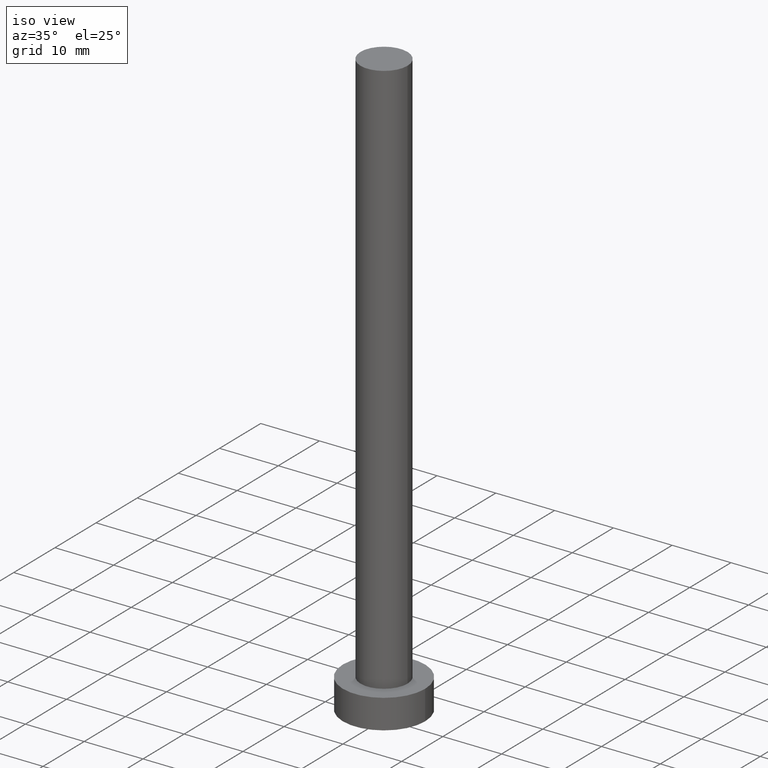
[diagram: clean part render]
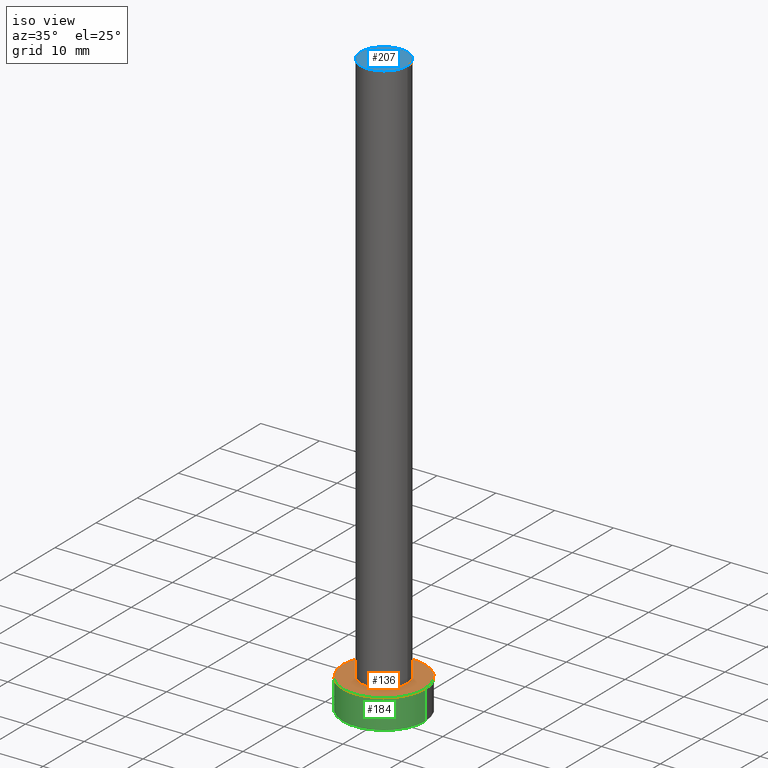
[diagram: same view with three faces highlighted in distinct colors, each labeled with its STEP entity id]
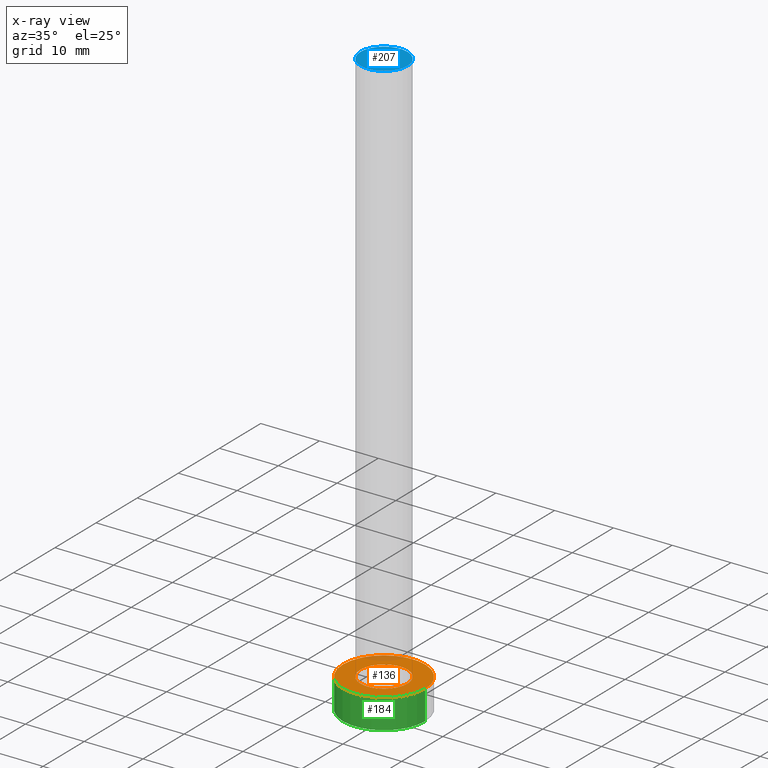
[diagram: x-ray of the same camera — body ghosted, the three highlighted faces saturated]
A machine part, iso view with three faces highlighted in distinct colors.
The next image is the same camera in x-ray (body ghosted, the three faces saturated) — at least one of them is partly hidden behind the body in this view.
Their STEP definitions:

[orange] entity #136 — the highlighted planar face has unit normal (0, 0, 1).
#12 = DIRECTION ( 'NONE',  ( 0.000000000000000000, 0.000000000000000000, 1.000000000000000000 ) ) ;
#27 = CARTESIAN_POINT ( 'NONE',  ( 0.000000000000000000, 0.000000000000000000, 5.000000000000000000 ) ) ;
#30 = CARTESIAN_POINT ( 'NONE',  ( 0.000000000000000000, 0.000000000000000000, 5.000000000000000000 ) ) ;
#33 = DIRECTION ( 'NONE',  ( 1.000000000000000000, 0.000000000000000000, -0.000000000000000000 ) ) ;
#34 = DIRECTION ( 'NONE',  ( 0.000000000000000000, 0.000000000000000000, 1.000000000000000000 ) ) ;
#35 = EDGE_LOOP ( 'NONE', ( #97, #42 ) ) ;
#42 = ORIENTED_EDGE ( 'NONE', *, *, #236, .F. ) ;
#48 = EDGE_CURVE ( 'NONE', #181, #60, #70, .T. ) ;
#50 = AXIS2_PLACEMENT_3D ( 'NONE', #234, #143, #198 ) ;
#55 = CARTESIAN_POINT ( 'NONE',  ( 0.000000000000000000, 0.000000000000000000, 5.000000000000000000 ) ) ;
#56 = PLANE ( 'NONE',  #202 ) ;
#60 = VERTEX_POINT ( 'NONE', #77 ) ;
#65 = VERTEX_POINT ( 'NONE', #73 ) ;
#70 = CIRCLE ( 'NONE', #86, 7.000000000000000000 ) ;
#73 = CARTESIAN_POINT ( 'NONE',  ( -4.000000000000000000, 0.000000000000000000, 5.000000000000000000 ) ) ;
#74 = FACE_OUTER_BOUND ( 'NONE', #99, .T. ) ;
#76 = CARTESIAN_POINT ( 'NONE',  ( -7.000000000000000000, 0.000000000000000000, 5.000000000000000000 ) ) ;
#77 = CARTESIAN_POINT ( 'NONE',  ( 7.000000000000000000, 8.572527594031473190E-16, 5.000000000000000000 ) ) ;
#86 = AXIS2_PLACEMENT_3D ( 'NONE', #30, #12, #96 ) ;
#90 = CARTESIAN_POINT ( 'NONE',  ( 0.000000000000000000, 0.000000000000000000, 5.000000000000000000 ) ) ;
#96 = DIRECTION ( 'NONE',  ( 1.000000000000000000, 0.000000000000000000, 0.000000000000000000 ) ) ;
#97 = ORIENTED_EDGE ( 'NONE', *, *, #126, .F. ) ;
#99 = EDGE_LOOP ( 'NONE', ( #119, #224 ) ) ;
#104 = CIRCLE ( 'NONE', #50, 4.000000000000000000 ) ;
#119 = ORIENTED_EDGE ( 'NONE', *, *, #48, .T. ) ;
#125 = CARTESIAN_POINT ( 'NONE',  ( 4.000000000000000000, 4.898587196589412829E-16, 5.000000000000000000 ) ) ;
#126 = EDGE_CURVE ( 'NONE', #65, #251, #151, .T. ) ;
#127 = AXIS2_PLACEMENT_3D ( 'NONE', #27, #139, #210 ) ;
#136 = ADVANCED_FACE ( 'NONE', ( #216, #74 ), #56, .T. ) ;
#139 = DIRECTION ( 'NONE',  ( 0.000000000000000000, 0.000000000000000000, 1.000000000000000000 ) ) ;
#143 = DIRECTION ( 'NONE',  ( 0.000000000000000000, 0.000000000000000000, 1.000000000000000000 ) ) ;
#147 = DIRECTION ( 'NONE',  ( 1.000000000000000000, 0.000000000000000000, 0.000000000000000000 ) ) ;
#151 = CIRCLE ( 'NONE', #205, 4.000000000000000000 ) ;
#181 = VERTEX_POINT ( 'NONE', #76 ) ;
#198 = DIRECTION ( 'NONE',  ( 1.000000000000000000, 0.000000000000000000, 0.000000000000000000 ) ) ;
#202 = AXIS2_PLACEMENT_3D ( 'NONE', #55, #34, #33 ) ;
#205 = AXIS2_PLACEMENT_3D ( 'NONE', #90, #238, #147 ) ;
#210 = DIRECTION ( 'NONE',  ( 1.000000000000000000, 0.000000000000000000, 0.000000000000000000 ) ) ;
#216 = FACE_BOUND ( 'NONE', #35, .T. ) ;
#224 = ORIENTED_EDGE ( 'NONE', *, *, #240, .T. ) ;
#234 = CARTESIAN_POINT ( 'NONE',  ( 0.000000000000000000, 0.000000000000000000, 5.000000000000000000 ) ) ;
#236 = EDGE_CURVE ( 'NONE', #251, #65, #104, .T. ) ;
#238 = DIRECTION ( 'NONE',  ( 0.000000000000000000, 0.000000000000000000, 1.000000000000000000 ) ) ;
#240 = EDGE_CURVE ( 'NONE', #60, #181, #248, .T. ) ;
#248 = CIRCLE ( 'NONE', #127, 7.000000000000000000 ) ;
#251 = VERTEX_POINT ( 'NONE', #125 ) ;

[blue] entity #207 — the highlighted planar face has unit normal (0, 0, 1).
#18 = ORIENTED_EDGE ( 'NONE', *, *, #37, .T. ) ;
#24 = CIRCLE ( 'NONE', #140, 4.000000000000000000 ) ;
#29 = DIRECTION ( 'NONE',  ( 0.000000000000000000, 0.000000000000000000, 1.000000000000000000 ) ) ;
#37 = EDGE_CURVE ( 'NONE', #209, #101, #213, .T. ) ;
#40 = DIRECTION ( 'NONE',  ( 1.000000000000000000, 0.000000000000000000, -0.000000000000000000 ) ) ;
#52 = EDGE_CURVE ( 'NONE', #101, #209, #24, .T. ) ;
#59 = CARTESIAN_POINT ( 'NONE',  ( 0.000000000000000000, 0.000000000000000000, 100.0000000000000000 ) ) ;
#66 = DIRECTION ( 'NONE',  ( 0.000000000000000000, 0.000000000000000000, 1.000000000000000000 ) ) ;
#83 = FACE_OUTER_BOUND ( 'NONE', #100, .T. ) ;
#95 = DIRECTION ( 'NONE',  ( 1.000000000000000000, 0.000000000000000000, 0.000000000000000000 ) ) ;
#100 = EDGE_LOOP ( 'NONE', ( #157, #18 ) ) ;
#101 = VERTEX_POINT ( 'NONE', #217 ) ;
#113 = CARTESIAN_POINT ( 'NONE',  ( 0.000000000000000000, 0.000000000000000000, 100.0000000000000000 ) ) ;
#129 = AXIS2_PLACEMENT_3D ( 'NONE', #59, #66, #40 ) ;
#140 = AXIS2_PLACEMENT_3D ( 'NONE', #200, #29, #95 ) ;
#157 = ORIENTED_EDGE ( 'NONE', *, *, #52, .T. ) ;
#173 = DIRECTION ( 'NONE',  ( 0.000000000000000000, 0.000000000000000000, 1.000000000000000000 ) ) ;
#192 = DIRECTION ( 'NONE',  ( 1.000000000000000000, 0.000000000000000000, 0.000000000000000000 ) ) ;
#200 = CARTESIAN_POINT ( 'NONE',  ( 0.000000000000000000, 0.000000000000000000, 100.0000000000000000 ) ) ;
#207 = ADVANCED_FACE ( 'NONE', ( #83 ), #223, .T. ) ;
#209 = VERTEX_POINT ( 'NONE', #245 ) ;
#213 = CIRCLE ( 'NONE', #253, 4.000000000000000000 ) ;
#217 = CARTESIAN_POINT ( 'NONE',  ( -4.000000000000000000, 0.000000000000000000, 100.0000000000000000 ) ) ;
#223 = PLANE ( 'NONE',  #129 ) ;
#245 = CARTESIAN_POINT ( 'NONE',  ( 4.000000000000000000, 4.898587196589412829E-16, 100.0000000000000000 ) ) ;
#253 = AXIS2_PLACEMENT_3D ( 'NONE', #113, #173, #192 ) ;

[green] entity #184 — the highlighted cylindrical surface (partial cylindrical patch) has radius 7 mm, axis along (-0, -0, -1).
#2 = VECTOR ( 'NONE', #110, 1000.000000000000000 ) ;
#6 = CARTESIAN_POINT ( 'NONE',  ( 7.000000000000000000, 8.572527594031473190E-16, 0.000000000000000000 ) ) ;
#8 = LINE ( 'NONE', #171, #2 ) ;
#11 = CARTESIAN_POINT ( 'NONE',  ( 0.000000000000000000, 0.000000000000000000, 5.000000000000000000 ) ) ;
#12 = DIRECTION ( 'NONE',  ( 0.000000000000000000, 0.000000000000000000, 1.000000000000000000 ) ) ;
#23 = ORIENTED_EDGE ( 'NONE', *, *, #219, .T. ) ;
#30 = CARTESIAN_POINT ( 'NONE',  ( 0.000000000000000000, 0.000000000000000000, 5.000000000000000000 ) ) ;
#39 = EDGE_LOOP ( 'NONE', ( #226, #63, #178, #23 ) ) ;
#46 = CARTESIAN_POINT ( 'NONE',  ( -7.000000000000000000, 0.000000000000000000, 5.000000000000000000 ) ) ;
#48 = EDGE_CURVE ( 'NONE', #181, #60, #70, .T. ) ;
#60 = VERTEX_POINT ( 'NONE', #77 ) ;
#63 = ORIENTED_EDGE ( 'NONE', *, *, #48, .F. ) ;
#70 = CIRCLE ( 'NONE', #86, 7.000000000000000000 ) ;
#72 = DIRECTION ( 'NONE',  ( 1.000000000000000000, 0.000000000000000000, 0.000000000000000000 ) ) ;
#76 = CARTESIAN_POINT ( 'NONE',  ( -7.000000000000000000, 0.000000000000000000, 5.000000000000000000 ) ) ;
#77 = CARTESIAN_POINT ( 'NONE',  ( 7.000000000000000000, 8.572527594031473190E-16, 5.000000000000000000 ) ) ;
#78 = EDGE_CURVE ( 'NONE', #60, #115, #8, .T. ) ;
#79 = VECTOR ( 'NONE', #107, 1000.000000000000000 ) ;
#86 = AXIS2_PLACEMENT_3D ( 'NONE', #30, #12, #96 ) ;
#96 = DIRECTION ( 'NONE',  ( 1.000000000000000000, 0.000000000000000000, 0.000000000000000000 ) ) ;
#107 = DIRECTION ( 'NONE',  ( -0.000000000000000000, -0.000000000000000000, -1.000000000000000000 ) ) ;
#108 = DIRECTION ( 'NONE',  ( 0.000000000000000000, 0.000000000000000000, 1.000000000000000000 ) ) ;
#110 = DIRECTION ( 'NONE',  ( -0.000000000000000000, -0.000000000000000000, -1.000000000000000000 ) ) ;
#115 = VERTEX_POINT ( 'NONE', #6 ) ;
#120 = CARTESIAN_POINT ( 'NONE',  ( 0.000000000000000000, 0.000000000000000000, 0.000000000000000000 ) ) ;
#152 = AXIS2_PLACEMENT_3D ( 'NONE', #11, #174, #242 ) ;
#153 = CYLINDRICAL_SURFACE ( 'NONE', #152, 7.000000000000000000 ) ;
#167 = CIRCLE ( 'NONE', #186, 7.000000000000000000 ) ;
#171 = CARTESIAN_POINT ( 'NONE',  ( 7.000000000000000000, 8.572527594031473190E-16, 5.000000000000000000 ) ) ;
#174 = DIRECTION ( 'NONE',  ( -0.000000000000000000, -0.000000000000000000, -1.000000000000000000 ) ) ;
#178 = ORIENTED_EDGE ( 'NONE', *, *, #230, .T. ) ;
#181 = VERTEX_POINT ( 'NONE', #76 ) ;
#184 = ADVANCED_FACE ( 'NONE', ( #190 ), #153, .T. ) ;
#185 = LINE ( 'NONE', #46, #79 ) ;
#186 = AXIS2_PLACEMENT_3D ( 'NONE', #120, #108, #72 ) ;
#190 = FACE_OUTER_BOUND ( 'NONE', #39, .T. ) ;
#219 = EDGE_CURVE ( 'NONE', #228, #115, #167, .T. ) ;
#226 = ORIENTED_EDGE ( 'NONE', *, *, #78, .F. ) ;
#228 = VERTEX_POINT ( 'NONE', #229 ) ;
#229 = CARTESIAN_POINT ( 'NONE',  ( -7.000000000000000000, 0.000000000000000000, 0.000000000000000000 ) ) ;
#230 = EDGE_CURVE ( 'NONE', #181, #228, #185, .T. ) ;
#242 = DIRECTION ( 'NONE',  ( -1.000000000000000000, 0.000000000000000000, 0.000000000000000000 ) ) ;